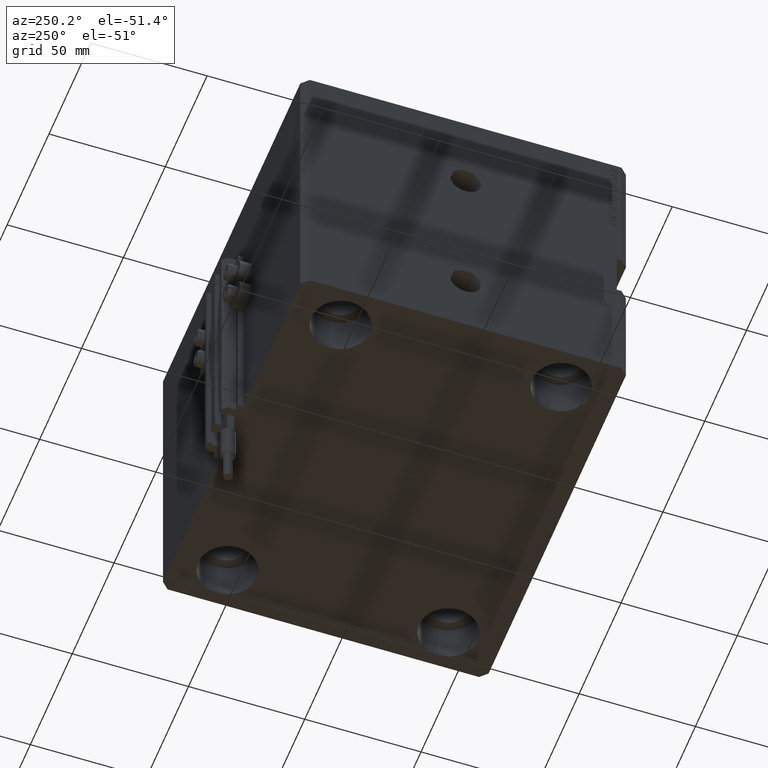
[diagram: clean part render]
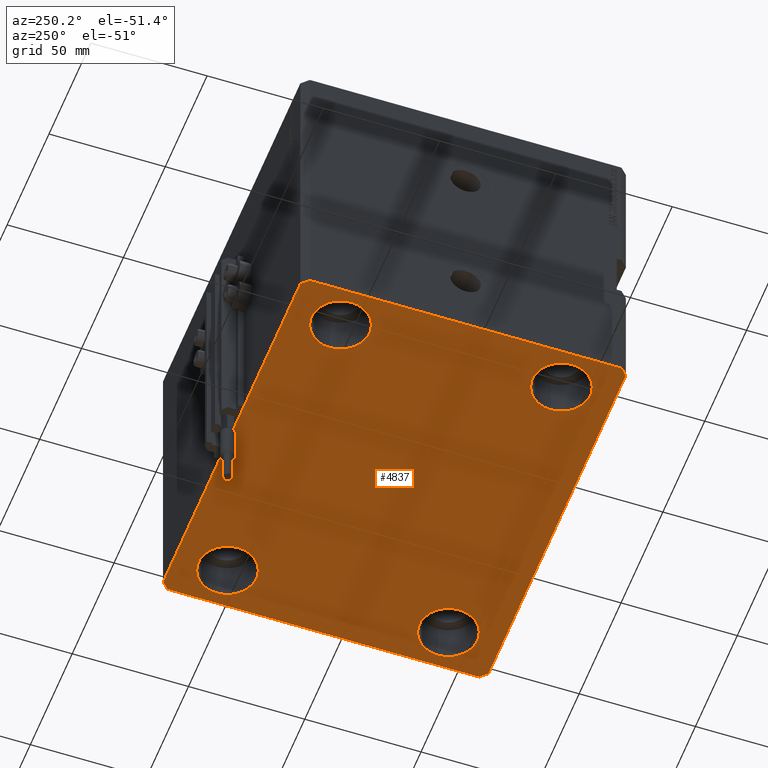
[diagram: same view with one face highlighted and labeled with its STEP entity id]
A machine part, auxiliary view. The second image highlights one B-rep face of the part: STEP entity #4837.
In plain terms, the highlighted planar face has unit normal (0, 0, 1).
Its self-contained STEP definition (entity closure, byte-faithful):
#46 = EDGE_CURVE ( 'NONE', #20954, #3392, #14625, .T. ) ;
#185 = ORIENTED_EDGE ( 'NONE', *, *, #43469, .T. ) ;
#336 = CIRCLE ( 'NONE', #36132, 12.49999999999999645 ) ;
#695 = DIRECTION ( 'NONE',  ( 1.000000000000000000, 0.000000000000000000, 0.000000000000000000 ) ) ;
#1133 = CARTESIAN_POINT ( 'NONE',  ( -82.00000000000001421, -70.00000000000000000, -130.0000000000000000 ) ) ;
#2681 = VECTOR ( 'NONE', #35475, 1000.000000000000000 ) ;
#2986 = DIRECTION ( 'NONE',  ( 3.935492064902608811E-15, 1.000000000000000000, 0.000000000000000000 ) ) ;
#3216 = EDGE_LOOP ( 'NONE', ( #27276, #31431, #25063, #41628, #16129, #12191, #18418, #20895 ) ) ;
#3392 = VERTEX_POINT ( 'NONE', #16539 ) ;
#3547 = VERTEX_POINT ( 'NONE', #22499 ) ;
#4291 = DIRECTION ( 'NONE',  ( -0.000000000000000000, -0.000000000000000000, 1.000000000000000000 ) ) ;
#4367 = CARTESIAN_POINT ( 'NONE',  ( 85.00000000000055422, 66.99999999999997158, -130.0000000000000000 ) ) ;
#4420 = DIRECTION ( 'NONE',  ( -0.000000000000000000, -0.000000000000000000, 1.000000000000000000 ) ) ;
#4837 = ADVANCED_FACE ( 'NONE', ( #42160, #11784, #40094, #28409, #8052 ), #26978, .F. ) ;
#5268 = DIRECTION ( 'NONE',  ( 0.7071067811865459074, 0.7071067811865491270, 0.000000000000000000 ) ) ;
#5485 = AXIS2_PLACEMENT_3D ( 'NONE', #25897, #6003, #41079 ) ;
#5952 = CIRCLE ( 'NONE', #20225, 12.49999999999999645 ) ;
#5997 = CARTESIAN_POINT ( 'NONE',  ( 0.000000000000000000, 0.000000000000000000, -130.0000000000000000 ) ) ;
#6003 = DIRECTION ( 'NONE',  ( -0.000000000000000000, -0.000000000000000000, 1.000000000000000000 ) ) ;
#6132 = CARTESIAN_POINT ( 'NONE',  ( -82.00000000000000000, 70.00000000000000000, -130.0000000000000000 ) ) ;
#7122 = VERTEX_POINT ( 'NONE', #47234 ) ;
#7600 = VERTEX_POINT ( 'NONE', #47558 ) ;
#8052 = FACE_OUTER_BOUND ( 'NONE', #3216, .T. ) ;
#8371 = CARTESIAN_POINT ( 'NONE',  ( -67.50000000000000000, -47.50000000000000000, -130.0000000000000000 ) ) ;
#8822 = CARTESIAN_POINT ( 'NONE',  ( -85.00000000000000000, 67.00000000000000000, -130.0000000000000000 ) ) ;
#9107 = ORIENTED_EDGE ( 'NONE', *, *, #48770, .T. ) ;
#9453 = VERTEX_POINT ( 'NONE', #28534 ) ;
#9465 = ORIENTED_EDGE ( 'NONE', *, *, #14618, .T. ) ;
#9534 = LINE ( 'NONE', #28935, #26723 ) ;
#10017 = AXIS2_PLACEMENT_3D ( 'NONE', #5997, #23254, #13458 ) ;
#10193 = ORIENTED_EDGE ( 'NONE', *, *, #21959, .T. ) ;
#10750 = CARTESIAN_POINT ( 'NONE',  ( -55.00000000000000711, 47.50000000000000000, -130.0000000000000000 ) ) ;
#10967 = ORIENTED_EDGE ( 'NONE', *, *, #23491, .T. ) ;
#11431 = AXIS2_PLACEMENT_3D ( 'NONE', #47201, #40231, #44459 ) ;
#11784 = FACE_BOUND ( 'NONE', #27140, .T. ) ;
#11968 = CARTESIAN_POINT ( 'NONE',  ( 82.00000000000001421, -70.00000000000000000, -130.0000000000000000 ) ) ;
#12183 = CIRCLE ( 'NONE', #40029, 12.49999999999999645 ) ;
#12191 = ORIENTED_EDGE ( 'NONE', *, *, #14467, .F. ) ;
#13458 = DIRECTION ( 'NONE',  ( 1.000000000000000000, 0.000000000000000000, -0.000000000000000000 ) ) ;
#13620 = CARTESIAN_POINT ( 'NONE',  ( 82.00000000000059686, 70.00000000000002842, -130.0000000000000000 ) ) ;
#14467 = EDGE_CURVE ( 'NONE', #41057, #22794, #20697, .T. ) ;
#14618 = EDGE_CURVE ( 'NONE', #7122, #15748, #26923, .T. ) ;
#14625 = CIRCLE ( 'NONE', #11431, 12.49999999999999645 ) ;
#15431 = DIRECTION ( 'NONE',  ( -0.7071067811865474617, -0.7071067811865474617, 0.000000000000000000 ) ) ;
#15748 = VERTEX_POINT ( 'NONE', #34399 ) ;
#16129 = ORIENTED_EDGE ( 'NONE', *, *, #29138, .F. ) ;
#16207 = LINE ( 'NONE', #11968, #23819 ) ;
#16539 = CARTESIAN_POINT ( 'NONE',  ( 55.00000000000000711, -47.50000000000000000, -130.0000000000000000 ) ) ;
#16583 = ORIENTED_EDGE ( 'NONE', *, *, #46, .T. ) ;
#17104 = VECTOR ( 'NONE', #22491, 1000.000000000000000 ) ;
#18025 = LINE ( 'NONE', #18752, #17104 ) ;
#18418 = ORIENTED_EDGE ( 'NONE', *, *, #46691, .F. ) ;
#18752 = CARTESIAN_POINT ( 'NONE',  ( -82.00000000000001421, -70.00000000000000000, -130.0000000000000000 ) ) ;
#18847 = EDGE_CURVE ( 'NONE', #45709, #42890, #36295, .T. ) ;
#19002 = AXIS2_PLACEMENT_3D ( 'NONE', #43237, #4420, #695 ) ;
#19440 = DIRECTION ( 'NONE',  ( -0.000000000000000000, -0.000000000000000000, 1.000000000000000000 ) ) ;
#19464 = DIRECTION ( 'NONE',  ( 1.000000000000000000, 0.000000000000000000, 0.000000000000000000 ) ) ;
#19834 = DIRECTION ( 'NONE',  ( 1.000000000000000000, 0.000000000000000000, 0.000000000000000000 ) ) ;
#20219 = VERTEX_POINT ( 'NONE', #10750 ) ;
#20225 = AXIS2_PLACEMENT_3D ( 'NONE', #29731, #19440, #27158 ) ;
#20697 = LINE ( 'NONE', #28163, #47584 ) ;
#20895 = ORIENTED_EDGE ( 'NONE', *, *, #44406, .F. ) ;
#20954 = VERTEX_POINT ( 'NONE', #48601 ) ;
#20977 = DIRECTION ( 'NONE',  ( -0.7071067811865344721, 0.7071067811865606734, 0.000000000000000000 ) ) ;
#21883 = EDGE_LOOP ( 'NONE', ( #26145, #10967 ) ) ;
#21959 = EDGE_CURVE ( 'NONE', #38836, #20219, #12183, .T. ) ;
#22139 = DIRECTION ( 'NONE',  ( 1.000000000000000000, 0.000000000000000000, 0.000000000000000000 ) ) ;
#22491 = DIRECTION ( 'NONE',  ( 1.000000000000000000, 0.000000000000000000, 0.000000000000000000 ) ) ;
#22499 = CARTESIAN_POINT ( 'NONE',  ( -80.00000000000000000, -47.50000000000000000, -130.0000000000000000 ) ) ;
#22794 = VERTEX_POINT ( 'NONE', #1133 ) ;
#23254 = DIRECTION ( 'NONE',  ( 0.000000000000000000, 0.000000000000000000, 1.000000000000000000 ) ) ;
#23491 = EDGE_CURVE ( 'NONE', #38480, #3547, #336, .T. ) ;
#23780 = VECTOR ( 'NONE', #2986, 1000.000000000000000 ) ;
#23819 = VECTOR ( 'NONE', #5268, 1000.000000000000000 ) ;
#24164 = CARTESIAN_POINT ( 'NONE',  ( -80.00000000000000000, 47.50000000000000000, -130.0000000000000000 ) ) ;
#24926 = CARTESIAN_POINT ( 'NONE',  ( -85.00000000000001421, -67.00000000000000000, -130.0000000000000000 ) ) ;
#25063 = ORIENTED_EDGE ( 'NONE', *, *, #38949, .F. ) ;
#25086 = DIRECTION ( 'NONE',  ( -1.000000000000000000, -1.692413147294439807E-16, 0.000000000000000000 ) ) ;
#25897 = CARTESIAN_POINT ( 'NONE',  ( 67.50000000000000000, 47.50000000000001421, -130.0000000000000000 ) ) ;
#25902 = CARTESIAN_POINT ( 'NONE',  ( 82.00000000000001421, -70.00000000000000000, -130.0000000000000000 ) ) ;
#26145 = ORIENTED_EDGE ( 'NONE', *, *, #40701, .T. ) ;
#26723 = VECTOR ( 'NONE', #20977, 1000.000000000000000 ) ;
#26923 = CIRCLE ( 'NONE', #5485, 12.49999999999999645 ) ;
#26978 = PLANE ( 'NONE',  #10017 ) ;
#27140 = EDGE_LOOP ( 'NONE', ( #9107, #16583 ) ) ;
#27158 = DIRECTION ( 'NONE',  ( 1.000000000000000000, 0.000000000000000000, 0.000000000000000000 ) ) ;
#27276 = ORIENTED_EDGE ( 'NONE', *, *, #18847, .F. ) ;
#28163 = CARTESIAN_POINT ( 'NONE',  ( -85.00000000000001421, -67.00000000000000000, -130.0000000000000000 ) ) ;
#28409 = FACE_BOUND ( 'NONE', #36461, .T. ) ;
#28495 = LINE ( 'NONE', #8822, #2681 ) ;
#28534 = CARTESIAN_POINT ( 'NONE',  ( -85.00000000000000000, 67.00000000000000000, -130.0000000000000000 ) ) ;
#28935 = CARTESIAN_POINT ( 'NONE',  ( 85.00000000000055422, 66.99999999999997158, -130.0000000000000000 ) ) ;
#29138 = EDGE_CURVE ( 'NONE', #22794, #41114, #18025, .T. ) ;
#29379 = EDGE_CURVE ( 'NONE', #31718, #45709, #9534, .T. ) ;
#29599 = DIRECTION ( 'NONE',  ( -0.000000000000000000, -0.000000000000000000, 1.000000000000000000 ) ) ;
#29731 = CARTESIAN_POINT ( 'NONE',  ( 67.50000000000000000, -47.50000000000000000, -130.0000000000000000 ) ) ;
#30951 = CIRCLE ( 'NONE', #19002, 12.49999999999999645 ) ;
#31115 = LINE ( 'NONE', #31359, #46085 ) ;
#31359 = CARTESIAN_POINT ( 'NONE',  ( -82.00000000000000000, 70.00000000000000000, -130.0000000000000000 ) ) ;
#31431 = ORIENTED_EDGE ( 'NONE', *, *, #29379, .F. ) ;
#31718 = VERTEX_POINT ( 'NONE', #4367 ) ;
#32774 = EDGE_CURVE ( 'NONE', #20219, #38836, #39495, .T. ) ;
#32966 = DIRECTION ( 'NONE',  ( 1.000000000000000000, 0.000000000000000000, 0.000000000000000000 ) ) ;
#33776 = ORIENTED_EDGE ( 'NONE', *, *, #32774, .T. ) ;
#34399 = CARTESIAN_POINT ( 'NONE',  ( 80.00000000000000000, 47.50000000000001421, -130.0000000000000000 ) ) ;
#35475 = DIRECTION ( 'NONE',  ( -1.035655806553317576E-16, -1.000000000000000000, 0.000000000000000000 ) ) ;
#36132 = AXIS2_PLACEMENT_3D ( 'NONE', #37320, #29599, #22139 ) ;
#36295 = LINE ( 'NONE', #13620, #41480 ) ;
#36461 = EDGE_LOOP ( 'NONE', ( #10193, #33776 ) ) ;
#36944 = DIRECTION ( 'NONE',  ( -0.000000000000000000, -0.000000000000000000, 1.000000000000000000 ) ) ;
#37079 = CARTESIAN_POINT ( 'NONE',  ( 85.00000000000001421, -66.99999999999998579, -130.0000000000000000 ) ) ;
#37320 = CARTESIAN_POINT ( 'NONE',  ( -67.50000000000000000, -47.50000000000000000, -130.0000000000000000 ) ) ;
#37881 = AXIS2_PLACEMENT_3D ( 'NONE', #44659, #36944, #32966 ) ;
#38385 = CARTESIAN_POINT ( 'NONE',  ( -67.50000000000000000, 47.50000000000000000, -130.0000000000000000 ) ) ;
#38466 = CARTESIAN_POINT ( 'NONE',  ( -55.00000000000000711, -47.50000000000000000, -130.0000000000000000 ) ) ;
#38480 = VERTEX_POINT ( 'NONE', #38466 ) ;
#38836 = VERTEX_POINT ( 'NONE', #24164 ) ;
#38949 = EDGE_CURVE ( 'NONE', #7600, #31718, #40798, .T. ) ;
#39495 = CIRCLE ( 'NONE', #37881, 12.49999999999999645 ) ;
#39917 = EDGE_CURVE ( 'NONE', #41114, #7600, #16207, .T. ) ;
#40029 = AXIS2_PLACEMENT_3D ( 'NONE', #38385, #4291, #19464 ) ;
#40094 = FACE_BOUND ( 'NONE', #44650, .T. ) ;
#40126 = CARTESIAN_POINT ( 'NONE',  ( 82.00000000000059686, 70.00000000000002842, -130.0000000000000000 ) ) ;
#40231 = DIRECTION ( 'NONE',  ( -0.000000000000000000, -0.000000000000000000, 1.000000000000000000 ) ) ;
#40701 = EDGE_CURVE ( 'NONE', #3547, #38480, #41330, .T. ) ;
#40798 = LINE ( 'NONE', #37079, #23780 ) ;
#41057 = VERTEX_POINT ( 'NONE', #24926 ) ;
#41079 = DIRECTION ( 'NONE',  ( 1.000000000000000000, 0.000000000000000000, 0.000000000000000000 ) ) ;
#41114 = VERTEX_POINT ( 'NONE', #25902 ) ;
#41330 = CIRCLE ( 'NONE', #48477, 12.49999999999999645 ) ;
#41480 = VECTOR ( 'NONE', #25086, 1000.000000000000000 ) ;
#41628 = ORIENTED_EDGE ( 'NONE', *, *, #39917, .F. ) ;
#42160 = FACE_BOUND ( 'NONE', #21883, .T. ) ;
#42890 = VERTEX_POINT ( 'NONE', #6132 ) ;
#43237 = CARTESIAN_POINT ( 'NONE',  ( 67.50000000000000000, 47.50000000000001421, -130.0000000000000000 ) ) ;
#43353 = DIRECTION ( 'NONE',  ( 0.7071067811865474617, -0.7071067811865474617, 0.000000000000000000 ) ) ;
#43469 = EDGE_CURVE ( 'NONE', #15748, #7122, #30951, .T. ) ;
#44406 = EDGE_CURVE ( 'NONE', #42890, #9453, #31115, .T. ) ;
#44459 = DIRECTION ( 'NONE',  ( 1.000000000000000000, 0.000000000000000000, 0.000000000000000000 ) ) ;
#44650 = EDGE_LOOP ( 'NONE', ( #9465, #185 ) ) ;
#44659 = CARTESIAN_POINT ( 'NONE',  ( -67.50000000000000000, 47.50000000000000000, -130.0000000000000000 ) ) ;
#45709 = VERTEX_POINT ( 'NONE', #40126 ) ;
#45977 = DIRECTION ( 'NONE',  ( -0.000000000000000000, -0.000000000000000000, 1.000000000000000000 ) ) ;
#46085 = VECTOR ( 'NONE', #15431, 1000.000000000000114 ) ;
#46691 = EDGE_CURVE ( 'NONE', #9453, #41057, #28495, .T. ) ;
#47201 = CARTESIAN_POINT ( 'NONE',  ( 67.50000000000000000, -47.50000000000000000, -130.0000000000000000 ) ) ;
#47234 = CARTESIAN_POINT ( 'NONE',  ( 55.00000000000000711, 47.50000000000001421, -130.0000000000000000 ) ) ;
#47558 = CARTESIAN_POINT ( 'NONE',  ( 85.00000000000001421, -66.99999999999998579, -130.0000000000000000 ) ) ;
#47584 = VECTOR ( 'NONE', #43353, 1000.000000000000114 ) ;
#48477 = AXIS2_PLACEMENT_3D ( 'NONE', #8371, #45977, #19834 ) ;
#48601 = CARTESIAN_POINT ( 'NONE',  ( 80.00000000000000000, -47.50000000000000000, -130.0000000000000000 ) ) ;
#48770 = EDGE_CURVE ( 'NONE', #3392, #20954, #5952, .T. ) ;